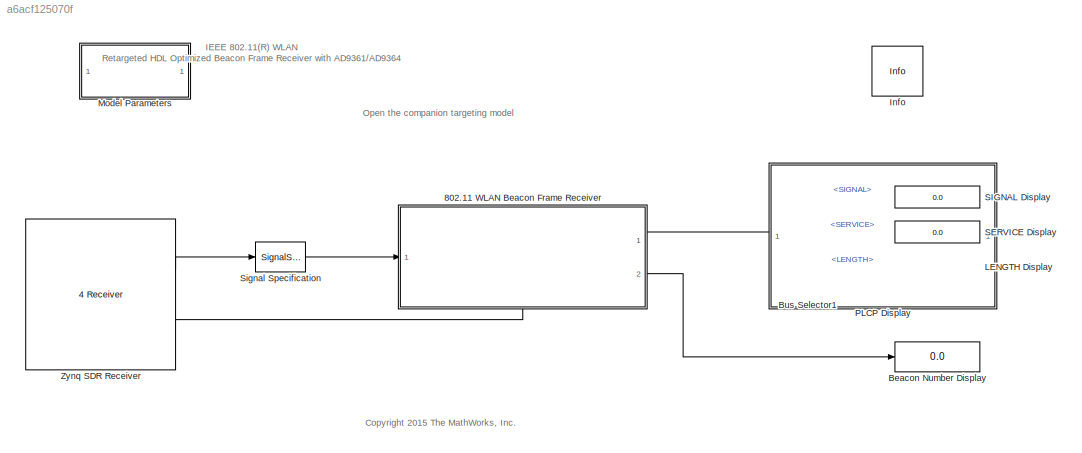
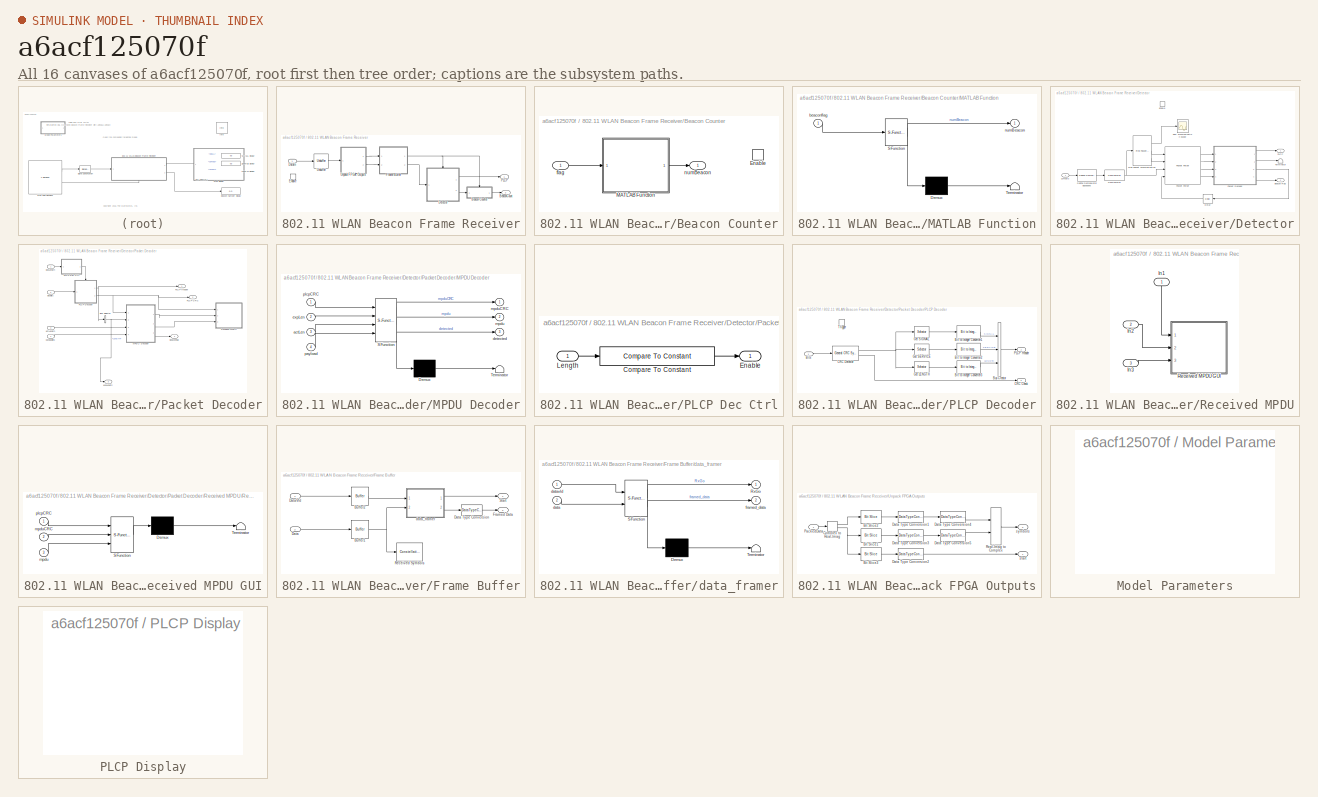
[diagram: thumbnail index - all 16 canvases of the model, root first then tree order]
MODEL slx_a6acf125070f
KIND model
CONFIG AbsTol = auto
CONFIG FixedStep = auto
CONFIG InitFcn = load('commwlan80211BusTypes')\nopenMPDUGUI = true;\nmpduFigPos= [ 100 100 400 500];
CONFIG MaxStep = auto
CONFIG MinStep = auto
CONFIG PostLoadFcn = zynqRadioWLAN80211BeaconRxFPGAAD9361AD9364SL_params('init')\nzynqRadioWLAN80211BeaconRxFPGAAD9361AD9364SL_params('retarget_scope')\n
CONFIG PreLoadFcn = load('commwlan80211BusTypes')\nopenMPDUGUI = true;\n
CONFIG RelTol = 1e-3
CONFIG SampleTimeConstraint = Unconstrained
CONFIG Solver = FixedStepDiscrete
CONFIG SolverMode = SingleTasking
CONFIG SolverName = FixedStepDiscrete
CONFIG StartTime = 0.0
CONFIG StopTime = 0.008
WORKSPACE source: external: MAT-File  (data not in archive)
BLOCK [SubSystem] 802.11 WLAN Beacon Frame Receiver
  Ports = [1, 2, 1]
  RequestExecContextInheritance = off
  Variant = off
BLOCK [SubSystem] 802.11 WLAN Beacon Frame Receiver/Beacon Counter
  Ports = [1, 1, 1]
  RequestExecContextInheritance = off
  Variant = off
BLOCK [EnablePort] 802.11 WLAN Beacon Frame Receiver/Beacon Counter/Enable
  Ports = []
BLOCK [SubSystem] 802.11 WLAN Beacon Frame Receiver/Beacon Counter/MATLAB Function
  ErrorFcn = Stateflow.Translate.translate
  PermitHierarchicalResolution = ExplicitOnly
  Ports = [1, 1]
  RequestExecContextInheritance = off
  SFBlockType = MATLAB Function
  TreatAsAtomicUnit = on
  Variant = off
BLOCK [Demux] 802.11 WLAN Beacon Frame Receiver/Beacon Counter/MATLAB Function/ Demux 
  Outputs = 1
  Ports = [1, 1]
BLOCK [S-Function] 802.11 WLAN Beacon Frame Receiver/Beacon Counter/MATLAB Function/ SFunction 
  EnableBusSupport = off
  FunctionName = sf_sfun
  PortCounts = [1 2]
  Ports = [1, 2]
  SFunctionDeploymentMode = off
  Tag = Stateflow S-Function zynqRadioWLAN80211BeaconRxFPGAAD9361AD9364RetargetSL 6
BLOCK [Terminator] 802.11 WLAN Beacon Frame Receiver/Beacon Counter/MATLAB Function/ Terminator 
BLOCK [Inport] 802.11 WLAN Beacon Frame Receiver/Beacon Counter/MATLAB Function/beaconflag
  IconDisplay = Port number
BLOCK [Outport] 802.11 WLAN Beacon Frame Receiver/Beacon Counter/MATLAB Function/numBeacon
  IconDisplay = Port number
BLOCK [Inport] 802.11 WLAN Beacon Frame Receiver/Beacon Counter/flag
  IconDisplay = Port number
BLOCK [Outport] 802.11 WLAN Beacon Frame Receiver/Beacon Counter/numBeacon
  IconDisplay = Port number
BLOCK [Outport] 802.11 WLAN Beacon Frame Receiver/BeaconCount
  IconDisplay = Port number
  Port = 2
BLOCK [Inport] 802.11 WLAN Beacon Frame Receiver/DataIn
  IconDisplay = Port number
BLOCK [SubSystem] 802.11 WLAN Beacon Frame Receiver/Detector
  CloseFcn = clear BeaconFrameBodyType rcvd
  Ports = [1, 2, 1]
  RequestExecContextInheritance = off
  Variant = off
BLOCK [Outport] 802.11 WLAN Beacon Frame Receiver/Detector/Beacon Flag
  IconDisplay = Port number
  InitialOutput = 1
  Port = 2
BLOCK [Reference] 802.11 WLAN Beacon Frame Receiver/Detector/DBPSK Demodulator Baseband  REF=commdigbbndpm3/DBPSK
Demodulator
Baseband
  Ports = [1, 1]
  SourceBlock = commdigbbndpm3/DBPSK\nDemodulator\nBaseband
  SourceType = DBPSK Demodulator Baseband
BLOCK [Delay] 802.11 WLAN Beacon Frame Receiver/Detector/Delay
  DelayLength = 1
  InitialCondition = 0
  InputPortMap = u0
  InputProcessing = Columns as channels (frame based)
  Ports = [1, 1]
  UserDataPersistent = on
BLOCK [Reference] 802.11 WLAN Beacon Frame Receiver/Detector/Descrambler  REF=commsequence2/Descrambler
  Ports = [1, 1]
  SourceBlock = commsequence2/Descrambler
  SourceType = Descrambler
BLOCK [EnablePort] 802.11 WLAN Beacon Frame Receiver/Detector/Enable
  Ports = []
  PropagateVarSize = During execution
  StatesWhenEnabling = reset
BLOCK [Reference] 802.11 WLAN Beacon Frame Receiver/Detector/Fine Packet Synchronization  REF=commwlan80211BeaconLib/Fine Packet
Synchronization
  Ports = [1, 3]
  SourceBlock = commwlan80211BeaconLib/Fine Packet\nSynchronization
  SourceType = SubSystem
BLOCK [Outport] 802.11 WLAN Beacon Frame Receiver/Detector/PLCP
  IconDisplay = Port number
BLOCK [SubSystem] 802.11 WLAN Beacon Frame Receiver/Detector/Packet Decoder
  Ports = [4, 4]
  RequestExecContextInheritance = off
  Variant = off
BLOCK [Outport] 802.11 WLAN Beacon Frame Receiver/Detector/Packet Decoder/BeaconFlag
  IconDisplay = Port number
  Port = 4
BLOCK [BusSelector] 802.11 WLAN Beacon Frame Receiver/Detector/Packet Decoder/Bus Selector
  OutputSignals = LENGTH
  Ports = [1, 1]
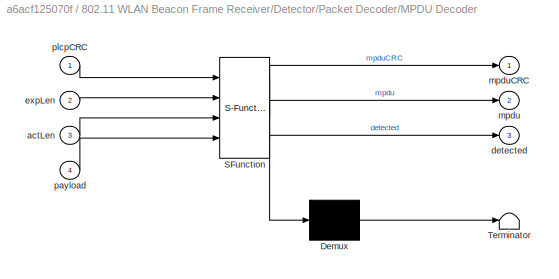
BLOCK [SubSystem] 802.11 WLAN Beacon Frame Receiver/Detector/Packet Decoder/MPDU Decoder
  ErrorFcn = Stateflow.Translate.translate
  PermitHierarchicalResolution = ExplicitOnly
  Ports = [4, 3]
  RequestExecContextInheritance = off
  SFBlockType = MATLAB Function
  TreatAsAtomicUnit = on
  Variant = off
BLOCK [Demux] 802.11 WLAN Beacon Frame Receiver/Detector/Packet Decoder/MPDU Decoder/ Demux 
  Outputs = 1
  Ports = [1, 1]
BLOCK [S-Function] 802.11 WLAN Beacon Frame Receiver/Detector/Packet Decoder/MPDU Decoder/ SFunction 
  EnableBusSupport = off
  FunctionName = sf_sfun
  PortCounts = [4 4]
  Ports = [4, 4]
  SFunctionDeploymentMode = off
  Tag = Stateflow S-Function zynqRadioWLAN80211BeaconRxFPGAAD9361AD9364RetargetSL 1
BLOCK [Terminator] 802.11 WLAN Beacon Frame Receiver/Detector/Packet Decoder/MPDU Decoder/ Terminator 
BLOCK [Inport] 802.11 WLAN Beacon Frame Receiver/Detector/Packet Decoder/MPDU Decoder/actLen
  IconDisplay = Port number
  Port = 3
BLOCK [Outport] 802.11 WLAN Beacon Frame Receiver/Detector/Packet Decoder/MPDU Decoder/detected
  IconDisplay = Port number
  Port = 3
BLOCK [Inport] 802.11 WLAN Beacon Frame Receiver/Detector/Packet Decoder/MPDU Decoder/expLen
  IconDisplay = Port number
  Port = 2
BLOCK [Outport] 802.11 WLAN Beacon Frame Receiver/Detector/Packet Decoder/MPDU Decoder/mpdu
  IconDisplay = Port number
  Port = 2
BLOCK [Outport] 802.11 WLAN Beacon Frame Receiver/Detector/Packet Decoder/MPDU Decoder/mpduCRC
  IconDisplay = Port number
BLOCK [Inport] 802.11 WLAN Beacon Frame Receiver/Detector/Packet Decoder/MPDU Decoder/payload
  IconDisplay = Port number
  Port = 4
BLOCK [Inport] 802.11 WLAN Beacon Frame Receiver/Detector/Packet Decoder/MPDU Decoder/plcpCRC
  IconDisplay = Port number
BLOCK [Outport] 802.11 WLAN Beacon Frame Receiver/Detector/Packet Decoder/PLCP CRC
  IconDisplay = Port number
  Port = 2
BLOCK [SubSystem] 802.11 WLAN Beacon Frame Receiver/Detector/Packet Decoder/PLCP Dec Ctrl
  Ports = [1, 1]
  RequestExecContextInheritance = off
  Variant = off
BLOCK [Reference] 802.11 WLAN Beacon Frame Receiver/Detector/Packet Decoder/PLCP Dec Ctrl/Compare To Constant  REF=simulink/Logic and Bit
Operations/Compare
To Constant
  Ports = [1, 1]
  SourceBlock = simulink/Logic and Bit\nOperations/Compare\nTo Constant
  SourceType = Compare To Constant
BLOCK [Outport] 802.11 WLAN Beacon Frame Receiver/Detector/Packet Decoder/PLCP Dec Ctrl/Enable
  IconDisplay = Port number
BLOCK [Inport] 802.11 WLAN Beacon Frame Receiver/Detector/Packet Decoder/PLCP Dec Ctrl/Length
  IconDisplay = Port number
BLOCK [SubSystem] 802.11 WLAN Beacon Frame Receiver/Detector/Packet Decoder/PLCP Decoder
  Ports = [1, 2, 0, 1]
  RequestExecContextInheritance = off
  Variant = off
BLOCK [Reference] 802.11 WLAN Beacon Frame Receiver/Detector/Packet Decoder/PLCP Decoder/Bit to Integer Converter1  REF=commutil2/Bit to Integer
Converter
  Ports = [1, 1]
  SourceBlock = commutil2/Bit to Integer\nConverter
  SourceType = Bit to Integer Converter
BLOCK [Reference] 802.11 WLAN Beacon Frame Receiver/Detector/Packet Decoder/PLCP Decoder/Bit to Integer Converter2  REF=commutil2/Bit to Integer
Converter
  Ports = [1, 1]
  SourceBlock = commutil2/Bit to Integer\nConverter
  SourceType = Bit to Integer Converter
BLOCK [Reference] 802.11 WLAN Beacon Frame Receiver/Detector/Packet Decoder/PLCP Decoder/Bit to Integer Converter3  REF=commutil2/Bit to Integer
Converter
  Ports = [1, 1]
  SourceBlock = commutil2/Bit to Integer\nConverter
  SourceType = Bit to Integer Converter
BLOCK [Inport] 802.11 WLAN Beacon Frame Receiver/Detector/Packet Decoder/PLCP Decoder/Bits
  IconDisplay = Port number
BLOCK [BusCreator] 802.11 WLAN Beacon Frame Receiver/Detector/Packet Decoder/PLCP Decoder/Bus Creator
  DisplayOption = bar
  InheritFromInputs = on
  Inputs = 3
  Ports = [3, 1]
BLOCK [Outport] 802.11 WLAN Beacon Frame Receiver/Detector/Packet Decoder/PLCP Decoder/CRC Check
  IconDisplay = Port number
  Port = 2
BLOCK [Reference] 802.11 WLAN Beacon Frame Receiver/Detector/Packet Decoder/PLCP Decoder/CRC Detector  REF=commcrc2/General CRC
Syndrome
Detector
  Ports = [1, 2]
  SourceBlock = commcrc2/General CRC\nSyndrome\nDetector
  SourceType = General CRC Syndrome Detector
BLOCK [Selector] 802.11 WLAN Beacon Frame Receiver/Detector/Packet Decoder/PLCP Decoder/Get LENGTH
  IndexOptions = Index vector (dialog)
  Indices = 17:32
  InputPortWidth = 32
  OutputSizes = 1
  Ports = [1, 1]
BLOCK [Selector] 802.11 WLAN Beacon Frame Receiver/Detector/Packet Decoder/PLCP Decoder/Get SERVICE
  IndexOptions = Index vector (dialog)
  Indices = 9:16
  InputPortWidth = 32
  OutputSizes = 1
  Ports = [1, 1]
BLOCK [Selector] 802.11 WLAN Beacon Frame Receiver/Detector/Packet Decoder/PLCP Decoder/Get SIGNAL
  IndexOptions = Index vector (dialog)
  Indices = 1:8
  InputPortWidth = 32
  OutputSizes = 1
  Ports = [1, 1]
BLOCK [Outport] 802.11 WLAN Beacon Frame Receiver/Detector/Packet Decoder/PLCP Decoder/PLCP Header
  IconDisplay = Port number
BLOCK [TriggerPort] 802.11 WLAN Beacon Frame Receiver/Detector/Packet Decoder/PLCP Decoder/Trigger
  PortDimensions = 1
  Ports = []
  StatesWhenEnabling = held
  VariantControl = Variant
BLOCK [Outport] 802.11 WLAN Beacon Frame Receiver/Detector/Packet Decoder/PLCP Header
  IconDisplay = Port number
BLOCK [SubSystem] 802.11 WLAN Beacon Frame Receiver/Detector/Packet Decoder/Received MPDU
  Ports = [3]
  RequestExecContextInheritance = off
  Variant = off
BLOCK [Inport] 802.11 WLAN Beacon Frame Receiver/Detector/Packet Decoder/Received MPDU/In1
  IconDisplay = Port number
BLOCK [Inport] 802.11 WLAN Beacon Frame Receiver/Detector/Packet Decoder/Received MPDU/In2
  IconDisplay = Port number
  Port = 2
BLOCK [Inport] 802.11 WLAN Beacon Frame Receiver/Detector/Packet Decoder/Received MPDU/In3
  IconDisplay = Port number
  Port = 3
BLOCK [SubSystem] 802.11 WLAN Beacon Frame Receiver/Detector/Packet Decoder/Received MPDU/Received MPDU GUI
  ErrorFcn = Stateflow.Translate.translate
  PermitHierarchicalResolution = ExplicitOnly
  Ports = [3]
  RequestExecContextInheritance = off
  SFBlockType = MATLAB Function
  TreatAsAtomicUnit = on
  Variant = off
BLOCK [Demux] 802.11 WLAN Beacon Frame Receiver/Detector/Packet Decoder/Received MPDU/Received MPDU GUI/ Demux 
  Outputs = 1
  Ports = [1, 1]
BLOCK [S-Function] 802.11 WLAN Beacon Frame Receiver/Detector/Packet Decoder/Received MPDU/Received MPDU GUI/ SFunction 
  EnableBusSupport = off
  FunctionName = sf_sfun
  Parameters = OpenScopeAtSimStart,figPosition
  PortCounts = [3 1]
  Ports = [3, 1]
  SFunctionDeploymentMode = off
  Tag = Stateflow S-Function zynqRadioWLAN80211BeaconRxFPGAAD9361AD9364RetargetSL 2
BLOCK [Terminator] 802.11 WLAN Beacon Frame Receiver/Detector/Packet Decoder/Received MPDU/Received MPDU GUI/ Terminator 
BLOCK [Inport] 802.11 WLAN Beacon Frame Receiver/Detector/Packet Decoder/Received MPDU/Received MPDU GUI/mpdu
  IconDisplay = Port number
  Port = 3
BLOCK [Inport] 802.11 WLAN Beacon Frame Receiver/Detector/Packet Decoder/Received MPDU/Received MPDU GUI/mpduCRC
  IconDisplay = Port number
  Port = 2
BLOCK [Inport] 802.11 WLAN Beacon Frame Receiver/Detector/Packet Decoder/Received MPDU/Received MPDU GUI/plcpCRC
  IconDisplay = Port number
BLOCK [Inport] 802.11 WLAN Beacon Frame Receiver/Detector/Packet Decoder/actLength
  IconDisplay = Port number
  Port = 3
BLOCK [Outport] 802.11 WLAN Beacon Frame Receiver/Detector/Packet Decoder/expLength
  IconDisplay = Port number
  Port = 3
BLOCK [Inport] 802.11 WLAN Beacon Frame Receiver/Detector/Packet Decoder/payloadBits
  IconDisplay = Port number
  Port = 4
BLOCK [Inport] 802.11 WLAN Beacon Frame Receiver/Detector/Packet Decoder/plcpBits
  IconDisplay = Port number
  Port = 2
BLOCK [Inport] 802.11 WLAN Beacon Frame Receiver/Detector/Packet Decoder/plcpLength
  IconDisplay = Port number
BLOCK [Reference] 802.11 WLAN Beacon Frame Receiver/Detector/Packet Parser  REF=commwlan80211BeaconLib/Packet Parser
  Ports = [4, 4]
  SourceBlock = commwlan80211BeaconLib/Packet Parser
  SourceType = SubSystem
BLOCK [Scope] 802.11 WLAN Beacon Frame Receiver/Detector/SFD Synchronization Scope
  DefaultConfigurationName = spbscopes.TimeScopeBlockCfg
  Ports = [1]
  Priority = 10
  ScopeSpecificationString = spbscopes.TimeScopeBlockCfg('CurrentConfiguration', extmgr.ConfigurationSet(extmgr.Configuration('Core','General UI',true),extmgr.Configuration('Core','Source UI',true),extmgr.Configuration('Sources','WiredSimulink',true,'DataLoggingVariableName','ScopeDataSFD'),extmgr.Configuration('Visuals','Time Domain',true,'DisplayPropertyDefaults',struct('MinYLimReal','-20.00000','MaxYLimReal','20.00000','YL...<+1517ch>
BLOCK [Inport] 802.11 WLAN Beacon Frame Receiver/Detector/Symbols
  IconDisplay = Port number
BLOCK [Terminator] 802.11 WLAN Beacon Frame Receiver/Detector/Terminator
BLOCK [EnablePort] 802.11 WLAN Beacon Frame Receiver/Enable
  Ports = []
BLOCK [SubSystem] 802.11 WLAN Beacon Frame Receiver/Frame Buffer
  Ports = [2, 2]
  RequestExecContextInheritance = off
  Variant = off
BLOCK [Buffer] 802.11 WLAN Beacon Frame Receiver/Frame Buffer/Buffer1
  N = 128
  OutputFrames = off
  TreatMby1Signals = One channel
BLOCK [Buffer] 802.11 WLAN Beacon Frame Receiver/Frame Buffer/Buffer2
  N = 128
  OutputFrames = off
  TreatMby1Signals = One channel
BLOCK [Inport] 802.11 WLAN Beacon Frame Receiver/Frame Buffer/Data
  IconDisplay = Port number
  Port = 2
BLOCK [DataTypeConversion] 802.11 WLAN Beacon Frame Receiver/Frame Buffer/Data Type Conversion
  RndMeth = Floor
  SaturateOnIntegerOverflow = off
BLOCK [Inport] 802.11 WLAN Beacon Frame Receiver/Frame Buffer/DataVld
  IconDisplay = Port number
BLOCK [Outport] 802.11 WLAN Beacon Frame Receiver/Frame Buffer/Framed Data
  IconDisplay = Port number
  Port = 2
BLOCK [ConstellationDiagram] 802.11 WLAN Beacon Frame Receiver/Frame Buffer/Received Symbols
  Ports = [1]
  Priority = 2
  ScopeSpecificationString = comm.scopes.ConstellationDiagramBlockCfg('CurrentConfiguration', extmgr.ConfigurationSet(extmgr.Configuration('Core','General UI',true),extmgr.Configuration('Core','Source UI',true),extmgr.Configuration('Sources','WiredSimulink',true),extmgr.Configuration('Sources','Simulink',false),extmgr.Configuration('Sources','File',false),extmgr.Configuration('Sources','Workspace',false),extmgr.Configuration(...<+2708ch>
  Tag = ScatterPlot
BLOCK [Outport] 802.11 WLAN Beacon Frame Receiver/Frame Buffer/Start
  IconDisplay = Port number
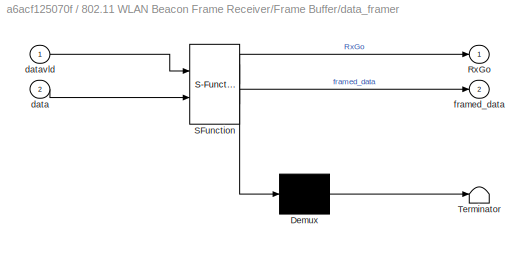
BLOCK [SubSystem] 802.11 WLAN Beacon Frame Receiver/Frame Buffer/data_framer
  ErrorFcn = Stateflow.Translate.translate
  PermitHierarchicalResolution = ExplicitOnly
  Ports = [2, 2]
  RequestExecContextInheritance = off
  SFBlockType = MATLAB Function
  TreatAsAtomicUnit = on
  Variant = off
BLOCK [Demux] 802.11 WLAN Beacon Frame Receiver/Frame Buffer/data_framer/ Demux 
  Outputs = 1
  Ports = [1, 1]
BLOCK [S-Function] 802.11 WLAN Beacon Frame Receiver/Frame Buffer/data_framer/ SFunction 
  EnableBusSupport = off
  FunctionName = sf_sfun
  Parameters = p80211
  PortCounts = [2 3]
  Ports = [2, 3]
  SFunctionDeploymentMode = off
  Tag = Stateflow S-Function zynqRadioWLAN80211BeaconRxFPGAAD9361AD9364RetargetSL 9
BLOCK [Terminator] 802.11 WLAN Beacon Frame Receiver/Frame Buffer/data_framer/ Terminator 
BLOCK [Outport] 802.11 WLAN Beacon Frame Receiver/Frame Buffer/data_framer/RxGo
  IconDisplay = Port number
BLOCK [Inport] 802.11 WLAN Beacon Frame Receiver/Frame Buffer/data_framer/data
  IconDisplay = Port number
  Port = 2
BLOCK [Inport] 802.11 WLAN Beacon Frame Receiver/Frame Buffer/data_framer/datavld
  IconDisplay = Port number
BLOCK [Outport] 802.11 WLAN Beacon Frame Receiver/Frame Buffer/data_framer/framed_data
  IconDisplay = Port number
  Port = 2
BLOCK [Outport] 802.11 WLAN Beacon Frame Receiver/PLCP
  IconDisplay = Port number
BLOCK [Unbuffer] 802.11 WLAN Beacon Frame Receiver/Unbuffer
  Ports = [1, 1]
  SampleBasedProcessing = Same as frame based
BLOCK [SubSystem] 802.11 WLAN Beacon Frame Receiver/Unpack FPGA Outputs
  Ports = [1, 2]
  RequestExecContextInheritance = off
  Variant = off
BLOCK [Reference] 802.11 WLAN Beacon Frame Receiver/Unpack FPGA Outputs/Bit Slice1  REF=hdlsllib/HDL Operations/Bit Slice
  Ports = [1, 1]
  SourceBlock = hdlsllib/HDL Operations/Bit Slice
  SourceType = Bit Slice
BLOCK [Reference] 802.11 WLAN Beacon Frame Receiver/Unpack FPGA Outputs/Bit Slice2  REF=hdlsllib/HDL Operations/Bit Slice
  Ports = [1, 1]
  SourceBlock = hdlsllib/HDL Operations/Bit Slice
  SourceType = Bit Slice
BLOCK [Reference] 802.11 WLAN Beacon Frame Receiver/Unpack FPGA Outputs/Bit Slice3  REF=hdlsllib/HDL Operations/Bit Slice
  Ports = [1, 1]
  SourceBlock = hdlsllib/HDL Operations/Bit Slice
  SourceType = Bit Slice
BLOCK [ComplexToRealImag] 802.11 WLAN Beacon Frame Receiver/Unpack FPGA Outputs/Complex to Real-Imag
  Ports = [1, 2]
BLOCK [DataTypeConversion] 802.11 WLAN Beacon Frame Receiver/Unpack FPGA Outputs/Data Type Conversion1
  ConvertRealWorld = Stored Integer (SI)
  OutDataTypeStr = fixdt(1,15,9)
  RndMeth = Floor
  SaturateOnIntegerOverflow = off
BLOCK [DataTypeConversion] 802.11 WLAN Beacon Frame Receiver/Unpack FPGA Outputs/Data Type Conversion2
  OutDataTypeStr = boolean
  RndMeth = Floor
  SaturateOnIntegerOverflow = off
BLOCK [DataTypeConversion] 802.11 WLAN Beacon Frame Receiver/Unpack FPGA Outputs/Data Type Conversion3
  ConvertRealWorld = Stored Integer (SI)
  OutDataTypeStr = fixdt(1,15,9)
  RndMeth = Floor
  SaturateOnIntegerOverflow = off
BLOCK [DataTypeConversion] 802.11 WLAN Beacon Frame Receiver/Unpack FPGA Outputs/Data Type Conversion4
  OutDataTypeStr = fixdt(1,16,10)
  RndMeth = Floor
  SaturateOnIntegerOverflow = off
BLOCK [DataTypeConversion] 802.11 WLAN Beacon Frame Receiver/Unpack FPGA Outputs/Data Type Conversion5
  OutDataTypeStr = fixdt(1,16,10)
  RndMeth = Floor
  SaturateOnIntegerOverflow = off
BLOCK [Inport] 802.11 WLAN Beacon Frame Receiver/Unpack FPGA Outputs/PackedData
  IconDisplay = Port number
BLOCK [RealImagToComplex] 802.11 WLAN Beacon Frame Receiver/Unpack FPGA Outputs/Real-Imag to Complex
  Ports = [2, 1]
BLOCK [Outport] 802.11 WLAN Beacon Frame Receiver/Unpack FPGA Outputs/start
  IconDisplay = Port number
BLOCK [Outport] 802.11 WLAN Beacon Frame Receiver/Unpack FPGA Outputs/symbols
  IconDisplay = Port number
  Port = 2
BLOCK [Display] Beacon Number Display
  Decimation = 1
  Ports = [1]
BLOCK [BusSelector] Bus Selector1
  OutputSignals = SIGNAL,SERVICE,LENGTH
  Ports = [1, 3]
BLOCK [Reference] Info  REF=sdrzblksprivate/Info
  Ports = []
  SourceBlock = sdrzblksprivate/Info
  SourceType = Info
BLOCK [Display] LENGTH Display
  Decimation = 1
  Ports = [1]
BLOCK [SubSystem] Model Parameters
  Ports = []
  RequestExecContextInheritance = off
  Variant = off
BLOCK [SubSystem] PLCP Display
  Ports = []
  RequestExecContextInheritance = off
  Variant = off
BLOCK [Display] SERVICE Display
  Decimation = 1
  Format = hex (Stored Integer)
  Ports = [1]
BLOCK [Display] SIGNAL Display
  Decimation = 1
  Format = hex (Stored Integer)
  Ports = [1]
BLOCK [SignalSpecification] Signal Specification
  SampleTime = p80211.RadioFrameLength/p80211.RadioBasebandRate
BLOCK [Reference] Zynq SDR Receiver  REF=zc706fmc234_lib/ZC706 and 
FMCOMMS2//3//4 
Receiver
  Ports = [0, 2]
  SourceBlock = zc706fmc234_lib/ZC706 and \nFMCOMMS2//3//4 \nReceiver
  SourceType = comm.internal.SDRRxZC706FMC234SL
ANNOTATION (root): IEEE 802.11(R) WLAN Retargeted HDL Optimized Beacon Frame Receiver with AD9361/AD9364
ANNOTATION (root): <copyright redacted>
ANNOTATION (root): Open the companion targeting model
LINE 802.11 WLAN Beacon Frame Receiver/Beacon Counter/MATLAB Function:1 -> 802.11 WLAN Beacon Frame Receiver/Beacon Counter/numBeacon:1
LINE 802.11 WLAN Beacon Frame Receiver/Beacon Counter/flag:1 -> 802.11 WLAN Beacon Frame Receiver/Beacon Counter/MATLAB Function:1
LINE 802.11 WLAN Beacon Frame Receiver/Beacon Counter:1 -> 802.11 WLAN Beacon Frame Receiver/BeaconCount:1
LINE 802.11 WLAN Beacon Frame Receiver/DataIn:1 -> 802.11 WLAN Beacon Frame Receiver/Unbuffer:1
LINE 802.11 WLAN Beacon Frame Receiver/Detector/DBPSK Demodulator Baseband:1 -> 802.11 WLAN Beacon Frame Receiver/Detector/Descrambler:1
LINE 802.11 WLAN Beacon Frame Receiver/Detector/Delay:1 -> 802.11 WLAN Beacon Frame Receiver/Detector/Packet Parser:4
NET 802.11 WLAN Beacon Frame Receiver/Detector/Descrambler:1 -> 802.11 WLAN Beacon Frame Receiver/Detector/Fine Packet Synchronization:1, 802.11 WLAN Beacon Frame Receiver/Detector/Packet Parser:3
LINE 802.11 WLAN Beacon Frame Receiver/Detector/Fine Packet Synchronization:1 -> 802.11 WLAN Beacon Frame Receiver/Detector/SFD Synchronization Scope:1
LINE 802.11 WLAN Beacon Frame Receiver/Detector/Fine Packet Synchronization:2 -> 802.11 WLAN Beacon Frame Receiver/Detector/Packet Parser:1
LINE 802.11 WLAN Beacon Frame Receiver/Detector/Fine Packet Synchronization:3 -> 802.11 WLAN Beacon Frame Receiver/Detector/Packet Parser:2
NET 802.11 WLAN Beacon Frame Receiver/Detector/Packet Decoder/Bus Selector:1 -> 802.11 WLAN Beacon Frame Receiver/Detector/Packet Decoder/MPDU Decoder:2, 802.11 WLAN Beacon Frame Receiver/Detector/Packet Decoder/expLength:1
LINE 802.11 WLAN Beacon Frame Receiver/Detector/Packet Decoder/MPDU Decoder:1 -> 802.11 WLAN Beacon Frame Receiver/Detector/Packet Decoder/Received MPDU:2
LINE 802.11 WLAN Beacon Frame Receiver/Detector/Packet Decoder/MPDU Decoder:2 -> 802.11 WLAN Beacon Frame Receiver/Detector/Packet Decoder/Received MPDU:3
LINE 802.11 WLAN Beacon Frame Receiver/Detector/Packet Decoder/MPDU Decoder:3 -> 802.11 WLAN Beacon Frame Receiver/Detector/Packet Decoder/BeaconFlag:1
LINE 802.11 WLAN Beacon Frame Receiver/Detector/Packet Decoder/PLCP Dec Ctrl/Compare To Constant:1 -> 802.11 WLAN Beacon Frame Receiver/Detector/Packet Decoder/PLCP Dec Ctrl/Enable:1
LINE 802.11 WLAN Beacon Frame Receiver/Detector/Packet Decoder/PLCP Dec Ctrl/Length:1 -> 802.11 WLAN Beacon Frame Receiver/Detector/Packet Decoder/PLCP Dec Ctrl/Compare To Constant:1
LINE 802.11 WLAN Beacon Frame Receiver/Detector/Packet Decoder/PLCP Dec Ctrl:1 -> 802.11 WLAN Beacon Frame Receiver/Detector/Packet Decoder/PLCP Decoder:trigger
LINE 802.11 WLAN Beacon Frame Receiver/Detector/Packet Decoder/PLCP Decoder/Bit to Integer Converter1:1 -> 802.11 WLAN Beacon Frame Receiver/Detector/Packet Decoder/PLCP Decoder/Bus Creator:1
LINE 802.11 WLAN Beacon Frame Receiver/Detector/Packet Decoder/PLCP Decoder/Bit to Integer Converter2:1 -> 802.11 WLAN Beacon Frame Receiver/Detector/Packet Decoder/PLCP Decoder/Bus Creator:2
LINE 802.11 WLAN Beacon Frame Receiver/Detector/Packet Decoder/PLCP Decoder/Bit to Integer Converter3:1 -> 802.11 WLAN Beacon Frame Receiver/Detector/Packet Decoder/PLCP Decoder/Bus Creator:3
LINE 802.11 WLAN Beacon Frame Receiver/Detector/Packet Decoder/PLCP Decoder/Bits:1 -> 802.11 WLAN Beacon Frame Receiver/Detector/Packet Decoder/PLCP Decoder/CRC Detector:1
LINE 802.11 WLAN Beacon Frame Receiver/Detector/Packet Decoder/PLCP Decoder/Bus Creator:1 -> 802.11 WLAN Beacon Frame Receiver/Detector/Packet Decoder/PLCP Decoder/PLCP Header:1
NET 802.11 WLAN Beacon Frame Receiver/Detector/Packet Decoder/PLCP Decoder/CRC Detector:1 -> 802.11 WLAN Beacon Frame Receiver/Detector/Packet Decoder/PLCP Decoder/Get LENGTH:1, 802.11 WLAN Beacon Frame Receiver/Detector/Packet Decoder/PLCP Decoder/Get SERVICE:1, 802.11 WLAN Beacon Frame Receiver/Detector/Packet Decoder/PLCP Decoder/Get SIGNAL:1
LINE 802.11 WLAN Beacon Frame Receiver/Detector/Packet Decoder/PLCP Decoder/CRC Detector:2 -> 802.11 WLAN Beacon Frame Receiver/Detector/Packet Decoder/PLCP Decoder/CRC Check:1
LINE 802.11 WLAN Beacon Frame Receiver/Detector/Packet Decoder/PLCP Decoder/Get LENGTH:1 -> 802.11 WLAN Beacon Frame Receiver/Detector/Packet Decoder/PLCP Decoder/Bit to Integer Converter3:1
LINE 802.11 WLAN Beacon Frame Receiver/Detector/Packet Decoder/PLCP Decoder/Get SERVICE:1 -> 802.11 WLAN Beacon Frame Receiver/Detector/Packet Decoder/PLCP Decoder/Bit to Integer Converter2:1
LINE 802.11 WLAN Beacon Frame Receiver/Detector/Packet Decoder/PLCP Decoder/Get SIGNAL:1 -> 802.11 WLAN Beacon Frame Receiver/Detector/Packet Decoder/PLCP Decoder/Bit to Integer Converter1:1
NET 802.11 WLAN Beacon Frame Receiver/Detector/Packet Decoder/PLCP Decoder:1 -> 802.11 WLAN Beacon Frame Receiver/Detector/Packet Decoder/Bus Selector:1, 802.11 WLAN Beacon Frame Receiver/Detector/Packet Decoder/PLCP Header:1
NET 802.11 WLAN Beacon Frame Receiver/Detector/Packet Decoder/PLCP Decoder:2 -> 802.11 WLAN Beacon Frame Receiver/Detector/Packet Decoder/MPDU Decoder:1, 802.11 WLAN Beacon Frame Receiver/Detector/Packet Decoder/PLCP CRC:1, 802.11 WLAN Beacon Frame Receiver/Detector/Packet Decoder/Received MPDU:1
LINE 802.11 WLAN Beacon Frame Receiver/Detector/Packet Decoder/Received MPDU/In1:1 -> 802.11 WLAN Beacon Frame Receiver/Detector/Packet Decoder/Received MPDU/Received MPDU GUI:1
LINE 802.11 WLAN Beacon Frame Receiver/Detector/Packet Decoder/Received MPDU/In2:1 -> 802.11 WLAN Beacon Frame Receiver/Detector/Packet Decoder/Received MPDU/Received MPDU GUI:2
LINE 802.11 WLAN Beacon Frame Receiver/Detector/Packet Decoder/Received MPDU/In3:1 -> 802.11 WLAN Beacon Frame Receiver/Detector/Packet Decoder/Received MPDU/Received MPDU GUI:3
LINE 802.11 WLAN Beacon Frame Receiver/Detector/Packet Decoder/actLength:1 -> 802.11 WLAN Beacon Frame Receiver/Detector/Packet Decoder/MPDU Decoder:3
LINE 802.11 WLAN Beacon Frame Receiver/Detector/Packet Decoder/payloadBits:1 -> 802.11 WLAN Beacon Frame Receiver/Detector/Packet Decoder/MPDU Decoder:4
LINE 802.11 WLAN Beacon Frame Receiver/Detector/Packet Decoder/plcpBits:1 -> 802.11 WLAN Beacon Frame Receiver/Detector/Packet Decoder/PLCP Decoder:1
LINE 802.11 WLAN Beacon Frame Receiver/Detector/Packet Decoder/plcpLength:1 -> 802.11 WLAN Beacon Frame Receiver/Detector/Packet Decoder/PLCP Dec Ctrl:1
LINE 802.11 WLAN Beacon Frame Receiver/Detector/Packet Decoder:1 -> 802.11 WLAN Beacon Frame Receiver/Detector/PLCP:1
LINE 802.11 WLAN Beacon Frame Receiver/Detector/Packet Decoder:2 -> 802.11 WLAN Beacon Frame Receiver/Detector/Terminator:1
LINE 802.11 WLAN Beacon Frame Receiver/Detector/Packet Decoder:3 -> 802.11 WLAN Beacon Frame Receiver/Detector/Delay:1
LINE 802.11 WLAN Beacon Frame Receiver/Detector/Packet Decoder:4 -> 802.11 WLAN Beacon Frame Receiver/Detector/Beacon Flag:1
LINE 802.11 WLAN Beacon Frame Receiver/Detector/Packet Parser:1 -> 802.11 WLAN Beacon Frame Receiver/Detector/Packet Decoder:1
LINE 802.11 WLAN Beacon Frame Receiver/Detector/Packet Parser:2 -> 802.11 WLAN Beacon Frame Receiver/Detector/Packet Decoder:2
LINE 802.11 WLAN Beacon Frame Receiver/Detector/Packet Parser:3 -> 802.11 WLAN Beacon Frame Receiver/Detector/Packet Decoder:3
LINE 802.11 WLAN Beacon Frame Receiver/Detector/Packet Parser:4 -> 802.11 WLAN Beacon Frame Receiver/Detector/Packet Decoder:4
LINE 802.11 WLAN Beacon Frame Receiver/Detector/Symbols:1 -> 802.11 WLAN Beacon Frame Receiver/Detector/DBPSK Demodulator Baseband:1
LINE 802.11 WLAN Beacon Frame Receiver/Detector:1 -> 802.11 WLAN Beacon Frame Receiver/PLCP:1
LINE 802.11 WLAN Beacon Frame Receiver/Detector:2 -> 802.11 WLAN Beacon Frame Receiver/Beacon Counter:1
NET 802.11 WLAN Beacon Frame Receiver/Frame Buffer/Buffer1:1 -> 802.11 WLAN Beacon Frame Receiver/Frame Buffer/Received Symbols:1, 802.11 WLAN Beacon Frame Receiver/Frame Buffer/data_framer:2
LINE 802.11 WLAN Beacon Frame Receiver/Frame Buffer/Buffer2:1 -> 802.11 WLAN Beacon Frame Receiver/Frame Buffer/data_framer:1
LINE 802.11 WLAN Beacon Frame Receiver/Frame Buffer/Data Type Conversion:1 -> 802.11 WLAN Beacon Frame Receiver/Frame Buffer/Framed Data:1
LINE 802.11 WLAN Beacon Frame Receiver/Frame Buffer/Data:1 -> 802.11 WLAN Beacon Frame Receiver/Frame Buffer/Buffer1:1
LINE 802.11 WLAN Beacon Frame Receiver/Frame Buffer/DataVld:1 -> 802.11 WLAN Beacon Frame Receiver/Frame Buffer/Buffer2:1
LINE 802.11 WLAN Beacon Frame Receiver/Frame Buffer/data_framer:1 -> 802.11 WLAN Beacon Frame Receiver/Frame Buffer/Start:1
LINE 802.11 WLAN Beacon Frame Receiver/Frame Buffer/data_framer:2 -> 802.11 WLAN Beacon Frame Receiver/Frame Buffer/Data Type Conversion:1
NET 802.11 WLAN Beacon Frame Receiver/Frame Buffer:1 -> 802.11 WLAN Beacon Frame Receiver/Beacon Counter:enable, 802.11 WLAN Beacon Frame Receiver/Detector:enable
LINE 802.11 WLAN Beacon Frame Receiver/Frame Buffer:2 -> 802.11 WLAN Beacon Frame Receiver/Detector:1
LINE 802.11 WLAN Beacon Frame Receiver/Unbuffer:1 -> 802.11 WLAN Beacon Frame Receiver/Unpack FPGA Outputs:1
LINE 802.11 WLAN Beacon Frame Receiver/Unpack FPGA Outputs/Bit Slice1:1 -> 802.11 WLAN Beacon Frame Receiver/Unpack FPGA Outputs/Data Type Conversion3:1
LINE 802.11 WLAN Beacon Frame Receiver/Unpack FPGA Outputs/Bit Slice2:1 -> 802.11 WLAN Beacon Frame Receiver/Unpack FPGA Outputs/Data Type Conversion1:1
LINE 802.11 WLAN Beacon Frame Receiver/Unpack FPGA Outputs/Bit Slice3:1 -> 802.11 WLAN Beacon Frame Receiver/Unpack FPGA Outputs/Data Type Conversion2:1
LINE 802.11 WLAN Beacon Frame Receiver/Unpack FPGA Outputs/Complex to Real-Imag:1 -> 802.11 WLAN Beacon Frame Receiver/Unpack FPGA Outputs/Bit Slice2:1
NET 802.11 WLAN Beacon Frame Receiver/Unpack FPGA Outputs/Complex to Real-Imag:2 -> 802.11 WLAN Beacon Frame Receiver/Unpack FPGA Outputs/Bit Slice1:1, 802.11 WLAN Beacon Frame Receiver/Unpack FPGA Outputs/Bit Slice3:1
LINE 802.11 WLAN Beacon Frame Receiver/Unpack FPGA Outputs/Data Type Conversion1:1 -> 802.11 WLAN Beacon Frame Receiver/Unpack FPGA Outputs/Data Type Conversion4:1
LINE 802.11 WLAN Beacon Frame Receiver/Unpack FPGA Outputs/Data Type Conversion2:1 -> 802.11 WLAN Beacon Frame Receiver/Unpack FPGA Outputs/start:1
LINE 802.11 WLAN Beacon Frame Receiver/Unpack FPGA Outputs/Data Type Conversion3:1 -> 802.11 WLAN Beacon Frame Receiver/Unpack FPGA Outputs/Data Type Conversion5:1
LINE 802.11 WLAN Beacon Frame Receiver/Unpack FPGA Outputs/Data Type Conversion4:1 -> 802.11 WLAN Beacon Frame Receiver/Unpack FPGA Outputs/Real-Imag to Complex:1
LINE 802.11 WLAN Beacon Frame Receiver/Unpack FPGA Outputs/Data Type Conversion5:1 -> 802.11 WLAN Beacon Frame Receiver/Unpack FPGA Outputs/Real-Imag to Complex:2
LINE 802.11 WLAN Beacon Frame Receiver/Unpack FPGA Outputs/PackedData:1 -> 802.11 WLAN Beacon Frame Receiver/Unpack FPGA Outputs/Complex to Real-Imag:1
LINE 802.11 WLAN Beacon Frame Receiver/Unpack FPGA Outputs/Real-Imag to Complex:1 -> 802.11 WLAN Beacon Frame Receiver/Unpack FPGA Outputs/symbols:1
LINE 802.11 WLAN Beacon Frame Receiver/Unpack FPGA Outputs:1 -> 802.11 WLAN Beacon Frame Receiver/Frame Buffer:1
LINE 802.11 WLAN Beacon Frame Receiver/Unpack FPGA Outputs:2 -> 802.11 WLAN Beacon Frame Receiver/Frame Buffer:2
LINE 802.11 WLAN Beacon Frame Receiver:1 -> Bus Selector1:1
LINE 802.11 WLAN Beacon Frame Receiver:2 -> Beacon Number Display:1
LINE Bus Selector1:1 -> SIGNAL Display:1
LINE Bus Selector1:2 -> SERVICE Display:1
LINE Bus Selector1:3 -> LENGTH Display:1
LINE Signal Specification:1 -> 802.11 WLAN Beacon Frame Receiver:1
LINE Zynq SDR Receiver:1 -> Signal Specification:1
LINE Zynq SDR Receiver:2 -> 802.11 WLAN Beacon Frame Receiver:enable
note: NET lines group one-source signal fan-out (src -> all destinations, sorted); 1:1 wires keep LINE
CHART 802.11 WLAN Beacon Frame Receiver/Detector/Packet Decoder/MPDU Decoder states=1 transitions=1
  STATE_LABEL 'eML_blk_kernel()'
  STATE_LABEL "SCRIPT:\nfunction [mpduCRC, mpdu,detected] = mpduDec(plcpCRC, expLen, actLen, payload)\n%#codegen\n\ncoder.extrinsic('warning')\n\npersistent hCRC firstTime lastMPDU lastMpduCRC \n\n% Frame check sequence (FCS)\nif isempty(hCRC)\n  hCRC = comm.CRCDetector([32 26 23 22 16 12 11 10 8 7 5 4 2 1 0], ...\n    'InitialConditions', 1, ...\n    'DirectMethod',      true, ...\n    'FinalXOR',          1);\n  firstTime =...<+3608ch>"
CHART 802.11 WLAN Beacon Frame Receiver/Detector/Packet Decoder/Received MPDU/Received MPDU GUI states=1 transitions=1
  STATE_LABEL 'eML_blk_kernel()'
  STATE_LABEL "SCRIPT:\nfunction mpduGUI(plcpCRC, mpduCRC, mpdu, OpenScopeAtSimStart, figPosition)\n%#codegen\n\npersistent resetGUI\n\nif isempty(resetGUI)\n  resetGUI = true;\nend\n\ncoder.extrinsic('receivedFullMPDUGUI')\n\nreceivedFullMPDUGUI(mpdu.Header, mpdu.FrameBody, plcpCRC, mpduCRC, ...\n  resetGUI, OpenScopeAtSimStart, figPosition);\n\nresetGUI = false;"
CHART 802.11 WLAN Beacon Frame Receiver/Beacon Counter/MATLAB Function states=1 transitions=1
  STATE_LABEL 'eML_blk_kernel()'
  STATE_LABEL 'SCRIPT:\nfunction numBeacon   = fcn(beaconflag)\n\n\n%#codegen\n\n\npersistent   beaconcnt\n\nif isempty (beaconcnt)\n    beaconcnt = 0;\n    \nend\n\nif beaconflag\n    \n    beaconcnt = beaconcnt+1;\n    \nend\n\nnumBeacon = beaconcnt;\n         \n'
CHART 802.11 WLAN Beacon Frame Receiver/Frame Buffer/data_framer states=1 transitions=1
  STATE_LABEL 'eML_blk_kernel()'
  STATE_LABEL 'SCRIPT:\nfunction [RxGo, framed_data] = dataframer(datavld, data, p80211)\n%#codegen\n\npersistent  gooddata_from_prev length_prev_good_data\n\n\nif isempty(gooddata_from_prev)\n    gooddata_from_prev = complex(zeros(128,1));\n    length_prev_good_data = 0;\nend\n\nif any(datavld) % there is some valid data\n    % get the valid data from this frame and append it with the previous\n    % stored one, if any\n    g...<+1186ch>'
